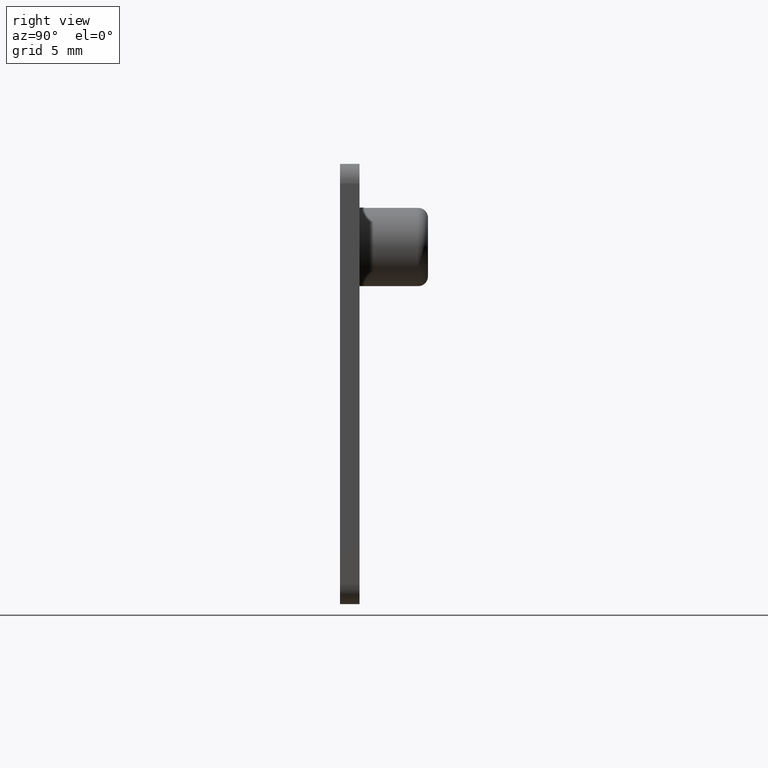
[diagram: clean part render]
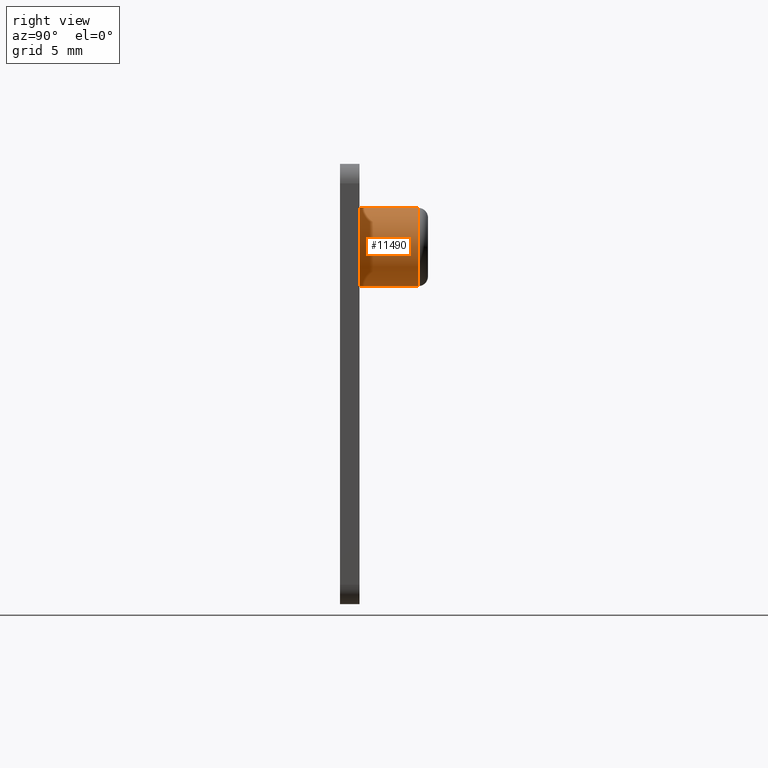
[diagram: same view with one face highlighted and labeled with its STEP entity id]
A machine part, right view. The second image highlights one B-rep face of the part: STEP entity #11490.
In plain terms, the highlighted cylindrical surface (partial cylindrical patch) has radius 2 mm, axis along (-0, -1, -0).
Its self-contained STEP definition (entity closure, byte-faithful):
#355 = CARTESIAN_POINT ( 'NONE',  ( 6.750000000000002700, 4.000000000000000000, 9.000000000000001800 ) ) ;
#498 = VECTOR ( 'NONE', #11150, 1000.000000000000000 ) ;
#687 = DIRECTION ( 'NONE',  ( -0.0000000000000000000, -1.000000000000000000, -0.0000000000000000000 ) ) ;
#1013 = AXIS2_PLACEMENT_3D ( 'NONE', #6917, #10594, #11582 ) ;
#1720 = ORIENTED_EDGE ( 'NONE', *, *, #7921, .T. ) ;
#1723 = CARTESIAN_POINT ( 'NONE',  ( 6.750000000000002700, 1.000000000000000000, 9.000000000000001800 ) ) ;
#1739 = ORIENTED_EDGE ( 'NONE', *, *, #11635, .F. ) ;
#1931 = VECTOR ( 'NONE', #10741, 1000.000000000000000 ) ;
#2034 = CARTESIAN_POINT ( 'NONE',  ( 6.750000000000002700, 4.500000000000000900, 4.999999999999997300 ) ) ;
#2347 = AXIS2_PLACEMENT_3D ( 'NONE', #10624, #9815, #5057 ) ;
#2947 = EDGE_CURVE ( 'NONE', #3550, #8640, #8073, .T. ) ;
#2982 = CARTESIAN_POINT ( 'NONE',  ( 6.750000000000002700, 1.000000000000000000, 4.999999999999997300 ) ) ;
#3550 = VERTEX_POINT ( 'NONE', #3830 ) ;
#3600 = DIRECTION ( 'NONE',  ( 0.0000000000000000000, 0.0000000000000000000, -1.000000000000000000 ) ) ;
#3830 = CARTESIAN_POINT ( 'NONE',  ( 6.750000000000002700, 4.000000000000000000, 4.999999999999997300 ) ) ;
#4153 = EDGE_LOOP ( 'NONE', ( #7356, #10652, #1720, #1739 ) ) ;
#4388 = LINE ( 'NONE', #7320, #498 ) ;
#4762 = LINE ( 'NONE', #2034, #1931 ) ;
#5057 = DIRECTION ( 'NONE',  ( 0.0000000000000000000, 0.0000000000000000000, -1.000000000000000000 ) ) ;
#5384 = AXIS2_PLACEMENT_3D ( 'NONE', #9179, #687, #3600 ) ;
#5562 = VERTEX_POINT ( 'NONE', #2982 ) ;
#6917 = CARTESIAN_POINT ( 'NONE',  ( 6.750000000000002700, 4.000000000000000000, 6.999999999999999100 ) ) ;
#7320 = CARTESIAN_POINT ( 'NONE',  ( 6.750000000000002700, 4.500000000000000900, 9.000000000000001800 ) ) ;
#7356 = ORIENTED_EDGE ( 'NONE', *, *, #2947, .T. ) ;
#7578 = VERTEX_POINT ( 'NONE', #1723 ) ;
#7921 = EDGE_CURVE ( 'NONE', #7578, #5562, #11972, .T. ) ;
#8073 = CIRCLE ( 'NONE', #1013, 2.000000000000001800 ) ;
#8640 = VERTEX_POINT ( 'NONE', #355 ) ;
#8703 = EDGE_CURVE ( 'NONE', #8640, #7578, #4388, .T. ) ;
#9179 = CARTESIAN_POINT ( 'NONE',  ( 6.750000000000002700, 4.500000000000000900, 6.999999999999999100 ) ) ;
#9815 = DIRECTION ( 'NONE',  ( -0.0000000000000000000, 1.000000000000000000, 0.0000000000000000000 ) ) ;
#9994 = CYLINDRICAL_SURFACE ( 'NONE', #5384, 2.000000000000001800 ) ;
#10594 = DIRECTION ( 'NONE',  ( -0.0000000000000000000, -1.000000000000000000, -0.0000000000000000000 ) ) ;
#10624 = CARTESIAN_POINT ( 'NONE',  ( 6.750000000000002700, 1.000000000000000000, 6.999999999999999100 ) ) ;
#10652 = ORIENTED_EDGE ( 'NONE', *, *, #8703, .T. ) ;
#10741 = DIRECTION ( 'NONE',  ( -0.0000000000000000000, -1.000000000000000000, -0.0000000000000000000 ) ) ;
#11150 = DIRECTION ( 'NONE',  ( -0.0000000000000000000, -1.000000000000000000, -0.0000000000000000000 ) ) ;
#11490 = ADVANCED_FACE ( 'NONE', ( #11913 ), #9994, .T. ) ;
#11582 = DIRECTION ( 'NONE',  ( 0.0000000000000000000, 0.0000000000000000000, 1.000000000000000000 ) ) ;
#11635 = EDGE_CURVE ( 'NONE', #3550, #5562, #4762, .T. ) ;
#11913 = FACE_OUTER_BOUND ( 'NONE', #4153, .T. ) ;
#11972 = CIRCLE ( 'NONE', #2347, 2.000000000000001800 ) ;